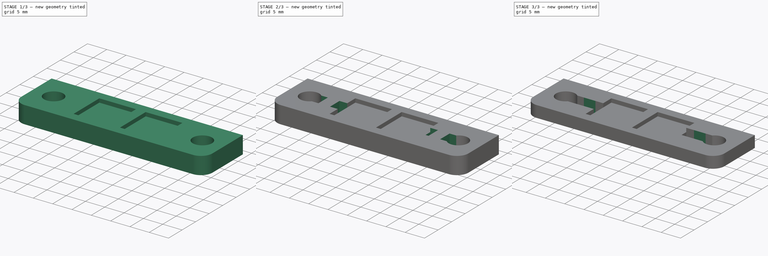
[diagram: build sequence overview — one tinted view per stage of 3, left to right]
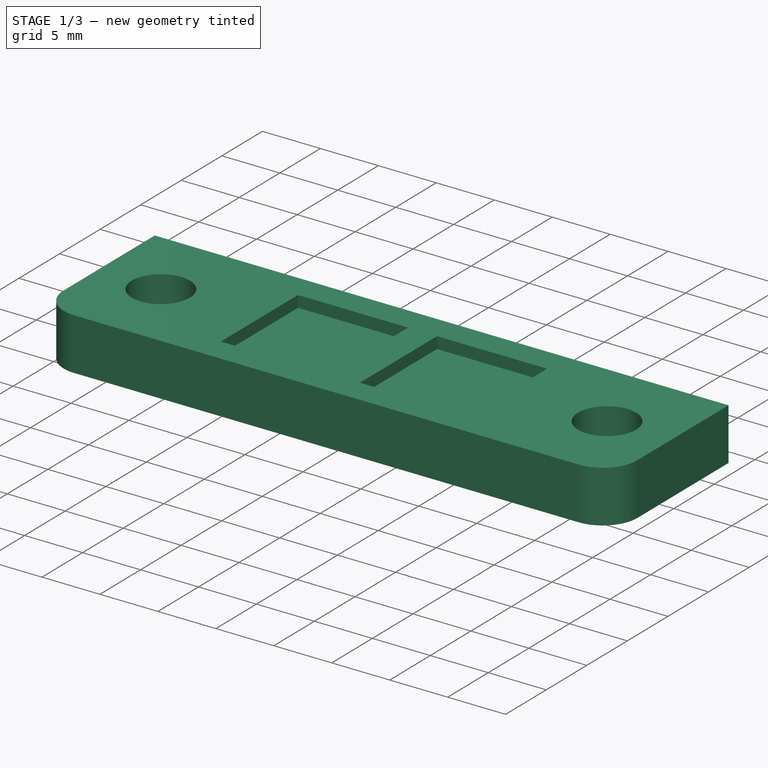
[diagram: stage 1 of 3 — iso view after this stage's code; geometry added in this stage tinted green]
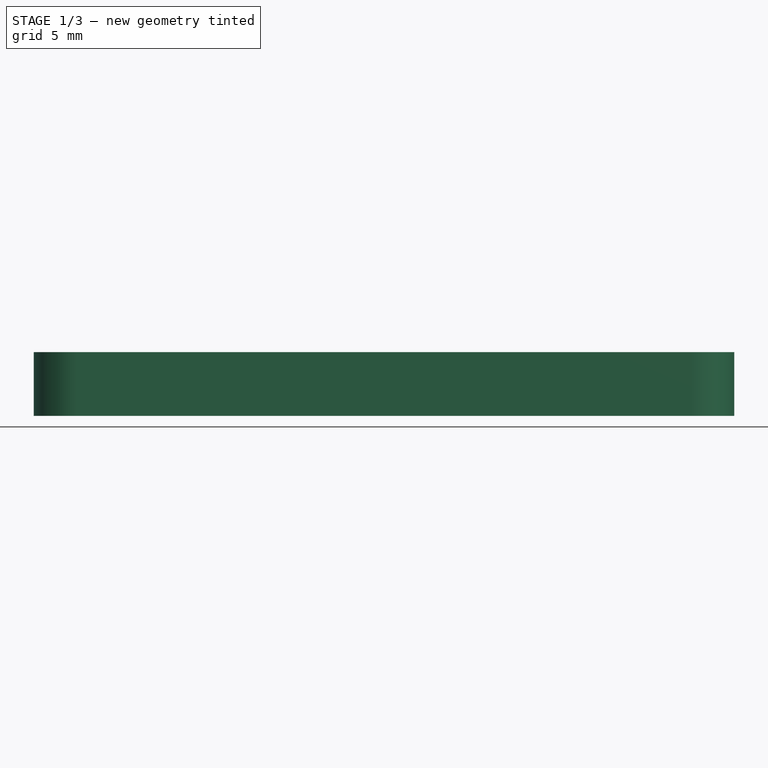
[diagram: stage 1 of 3 — front view after this stage's code; geometry added in this stage tinted green]
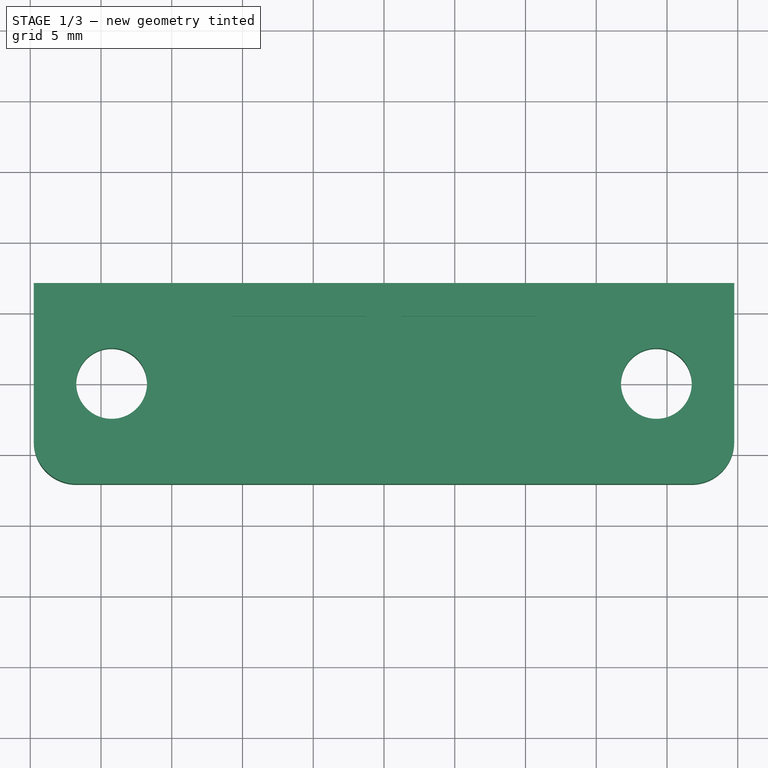
[diagram: stage 1 of 3 — top view after this stage's code; geometry added in this stage tinted green]
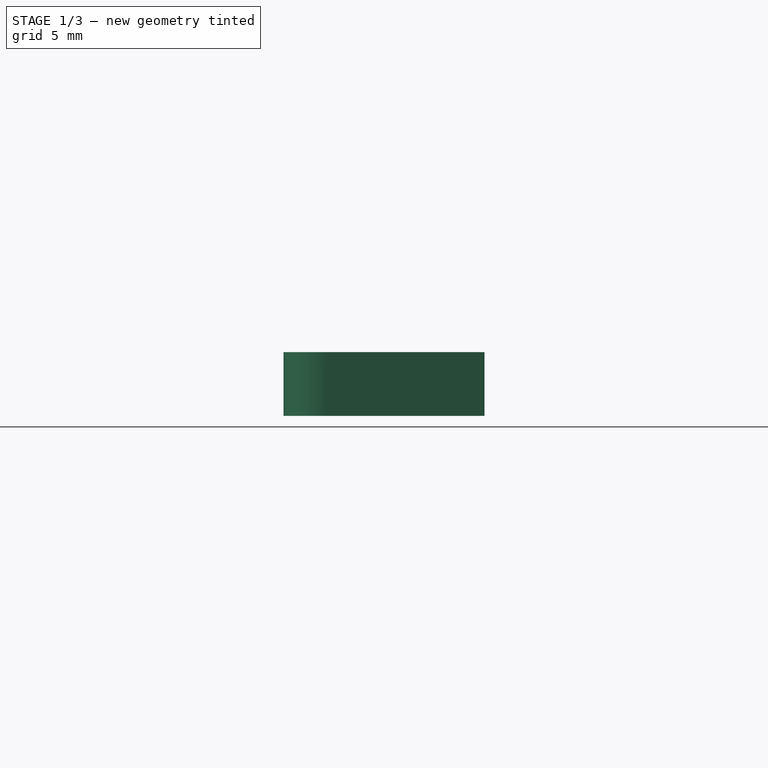
[diagram: stage 1 of 3 — right view after this stage's code; geometry added in this stage tinted green]
FCSTD DOCUMENT  (FreeCAD 0.19R24291 (Git))
Label: rumble_flat
License: All rights reserved
LicenseURL: http://en.wikipedia.org/wiki/All_rights_reserved
objects: Sketcher::SketchObject×5, PartDesign::Pocket×4, PartDesign::Plane×3, PartDesign::Pad×1, PartDesign::Body×1
note: 19 computed .brp shape members not serialized (recipe doc carries the construction recipe); baked Part::Feature solids carry a one-line shape summary decoded from their .brp

FEATURE [Sketcher::SketchObject] Sketch  label="SketchPakFromTop"
  FullyConstrained = true
  MapMode = 5
  Support = -> [XY_Plane]
  sketch-geometry (8):
    g0: LineSegment StartX=-24.75 StartY=7.1 StartZ=0 EndX=24.75 EndY=7.1 EndZ=0
    g1: LineSegment StartX=24.75 StartY=7.1 StartZ=0 EndX=24.75 EndY=-4.1 EndZ=0
    g2: LineSegment StartX=21.75 StartY=-7.1 StartZ=0 EndX=-21.75 EndY=-7.1 EndZ=0
    g3: LineSegment StartX=-24.75 StartY=-4.1 StartZ=0 EndX=-24.75 EndY=7.1 EndZ=0
    g4: ArcOfCircle CenterX=-21.75 CenterY=-4.1 CenterZ=0 NormalX=0 NormalY=0 NormalZ=1 AngleXU=0 Radius=3 StartAngle=3.14159 EndAngle=4.71239
    g5: ArcOfCircle CenterX=21.75 CenterY=-4.1 CenterZ=0 NormalX=0 NormalY=0 NormalZ=1 AngleXU=0 Radius=3 StartAngle=4.71239 EndAngle=6.28319
    g6: Circle CenterX=-19.25 CenterY=0 CenterZ=0 NormalX=0 NormalY=0 NormalZ=1 AngleXU=0 Radius=2.5
    g7: Circle CenterX=19.25 CenterY=0 CenterZ=0 NormalX=0 NormalY=0 NormalZ=1 AngleXU=0 Radius=2.5
  constraints (19):
    c: Coincident(g0,g1)
    c: Coincident(g3,g0)
    c: Vertical(g1)
    c: Tangent(g2,g4) = 1.5708
    c: Tangent(g3,g4) = 1.5708
    c: Tangent(g1,g5) = 1.5708
    c: Tangent(g2,g5) = 1.5708
    c: Symmetric(g2,g2,g-2)
    c: Symmetric(g1,g3,g-2)
    c: Symmetric(g0,g0,g-2)
    c: Radius(g5) = 3
    c: DistanceY(g2,g0) = 14.2
    c: DistanceX(g0,g0) = 49.5
    c: Symmetric(g7,g6,g-2)
    c: Radius(g7) = 2.5
    c: Radius(g6) = 2.5
    c: DistanceY(g2,g6) = 7.1
    c: DistanceX(g0,g6) = 5.5
    c: DistanceY(g-1,g6) = 0
FEATURE [PartDesign::Pad] Pad
  Direction = (1,1,1)
  Length = 4.5
  Length2 = 100
  Profile = -> Sketch
  Type = 0
FEATURE [PartDesign::Plane] DatumPlane  label="DatumPlanePakFront"
  Length = 60
  MapMode = 5
  Placement = pos=(0,-7.1,0) rot=(1,0,0;1.5708rad)
  ResizeMode = 0
  Support = -> [Pad]
  Width = 60
FEATURE [PartDesign::Plane] DatumPlane001  label="DatumPlaneTerminal"
  Length = 60
  MapMode = 5
  Placement = pos=(0,0,4.5) rot=(0,0,1;0rad)
  ResizeMode = 0
  Support = -> [Pad]
  Width = 60
FEATURE [Sketcher::SketchObject] Sketch001  label="SketchTerminalCutout"
  FullyConstrained = true
  MapMode = 5
  Placement = pos=(0,0,4.5) rot=(0,0,1;0rad)
  Support = -> [DatumPlane001]
  sketch-geometry (8):
    g0: LineSegment StartX=-10.75 StartY=4.75 StartZ=0 EndX=-1.25 EndY=4.75 EndZ=0
    g1: LineSegment StartX=-1.25 StartY=4.75 StartZ=0 EndX=-1.25 EndY=-4.75 EndZ=0
    g2: LineSegment StartX=-1.25 StartY=-4.75 StartZ=0 EndX=-10.75 EndY=-4.75 EndZ=0
    g3: LineSegment StartX=1.25 StartY=4.75 StartZ=0 EndX=10.75 EndY=4.75 EndZ=0
    g4: LineSegment StartX=10.75 StartY=-4.75 StartZ=0 EndX=1.25 EndY=-4.75 EndZ=0
    g5: LineSegment StartX=1.25 StartY=-4.75 StartZ=0 EndX=1.25 EndY=4.75 EndZ=0
    g6: LineSegment StartX=-10.75 StartY=4.75 StartZ=0 EndX=-10.75 EndY=-4.75 EndZ=0
    g7: LineSegment StartX=10.75 StartY=4.75 StartZ=0 EndX=10.75 EndY=-4.75 EndZ=0
  constraints (21):
    c: Coincident(g0,g1)
    c: Coincident(g1,g2)
    c: Horizontal(g0)
    c: Horizontal(g2)
    c: Coincident(g4,g5)
    c: Coincident(g5,g3)
    c: Horizontal(g3)
    c: Horizontal(g4)
    c: Vertical(g5)
    c: Symmetric(g0,g3,g-2)
    c: Symmetric(g2,g4,g-2)
    c: Symmetric(g0,g1,g-1)
    c: DistanceX(g1,g4) = 2.5
    c: DistanceX(g2,g1) = 9.5
    c: DistanceY(g2,g0) = 9.5
    c: Coincident(g6,g0)
    c: Coincident(g6,g2)
    c: Vertical(g6)
    c: Coincident(g7,g3)
    c: Coincident(g7,g4)
    c: Vertical(g7)
FEATURE [PartDesign::Pocket] Pocket  label="PocketTerminalCutout"
  BaseFeature = -> Pad
  Length = 1
  Length2 = 100
  Profile = -> Sketch001
  Type = 0
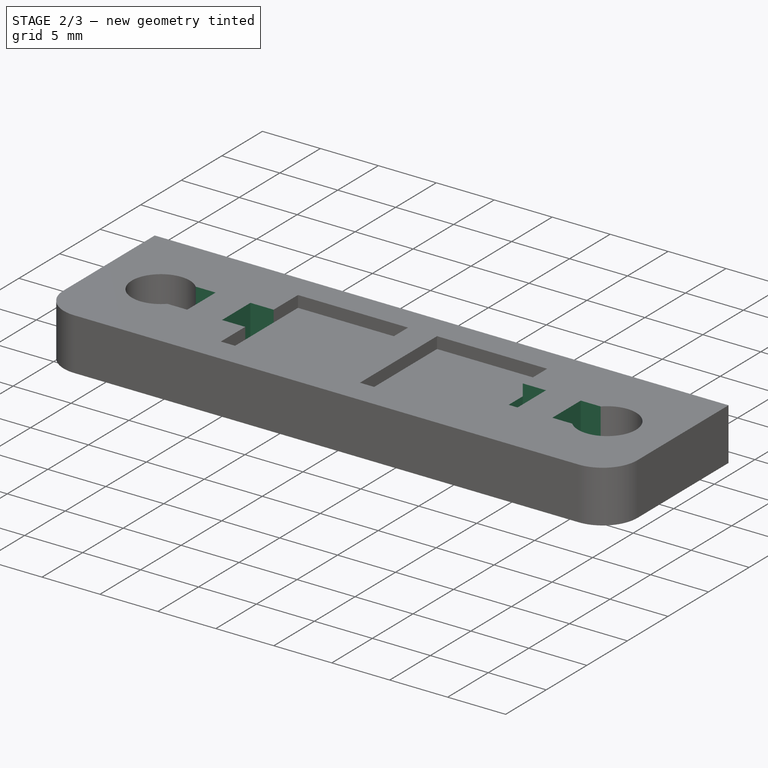
[diagram: stage 2 of 3 — iso view after this stage's code; geometry added in this stage tinted green]
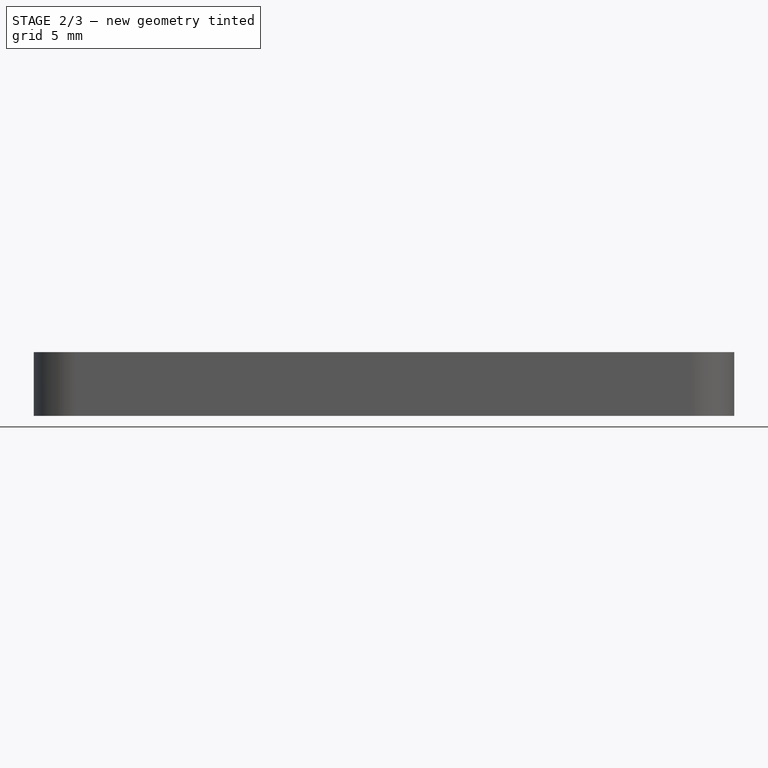
[diagram: stage 2 of 3 — front view after this stage's code; geometry added in this stage tinted green]
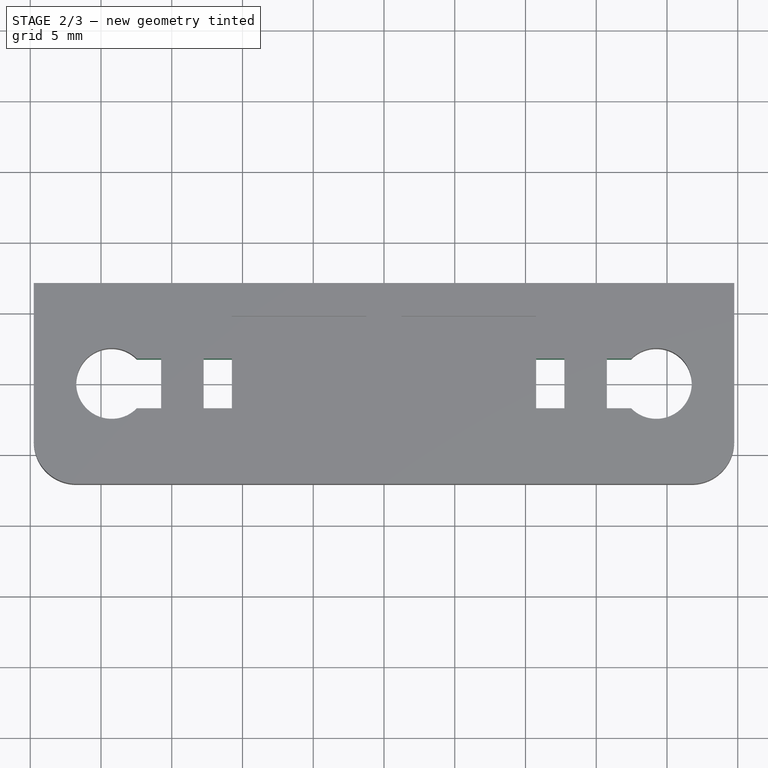
[diagram: stage 2 of 3 — top view after this stage's code; geometry added in this stage tinted green]
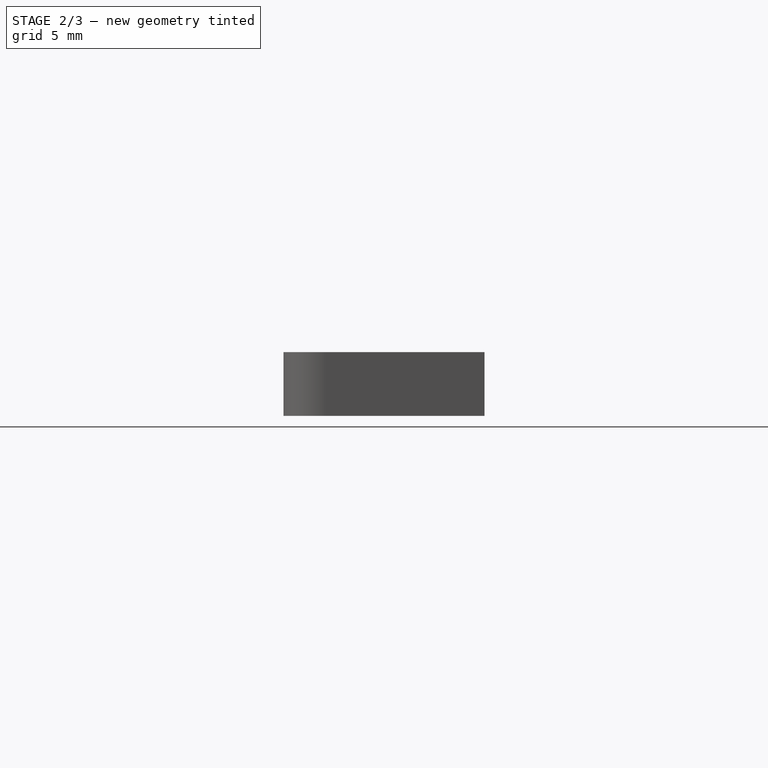
[diagram: stage 2 of 3 — right view after this stage's code; geometry added in this stage tinted green]
FEATURE [Sketcher::SketchObject] Sketch002  label="SketchTerminalTailThrough"
  FullyConstrained = true
  MapMode = 5
  Placement = pos=(0,0,4.5) rot=(0,0,1;0rad)
  Support = -> [DatumPlane001]
  sketch-geometry (16):
    g0: LineSegment StartX=-10.75 StartY=-1.75 StartZ=0 EndX=-12.75 EndY=-1.75 EndZ=0
    g1: LineSegment StartX=-12.75 StartY=-1.75 StartZ=0 EndX=-12.75 EndY=1.75 EndZ=0
    g2: LineSegment StartX=-12.75 StartY=1.75 StartZ=0 EndX=-10.75 EndY=1.75 EndZ=0
    g3: LineSegment StartX=-10.75 StartY=1.75 StartZ=0 EndX=-10.75 EndY=-1.75 EndZ=0
    g4: LineSegment StartX=10.75 StartY=-1.75 StartZ=0 EndX=12.75 EndY=-1.75 EndZ=0
    g5: LineSegment StartX=12.75 StartY=-1.75 StartZ=0 EndX=12.75 EndY=1.75 EndZ=0
    g6: LineSegment StartX=12.75 StartY=1.75 StartZ=0 EndX=10.75 EndY=1.75 EndZ=0
    g7: LineSegment StartX=10.75 StartY=1.75 StartZ=0 EndX=10.75 EndY=-1.75 EndZ=0
    g8: LineSegment StartX=-15.75 StartY=1.75 StartZ=0 EndX=-17.75 EndY=1.75 EndZ=0
    g9: LineSegment StartX=-17.75 StartY=1.75 StartZ=0 EndX=-17.75 EndY=-1.75 EndZ=0
    g10: LineSegment StartX=-17.75 StartY=-1.75 StartZ=0 EndX=-15.75 EndY=-1.75 EndZ=0
    g11: LineSegment StartX=-15.75 StartY=-1.75 StartZ=0 EndX=-15.75 EndY=1.75 EndZ=0
    g12: LineSegment StartX=15.75 StartY=1.75 StartZ=0 EndX=17.75 EndY=1.75 EndZ=0
    g13: LineSegment StartX=17.75 StartY=1.75 StartZ=0 EndX=17.75 EndY=-1.75 EndZ=0
    g14: LineSegment StartX=17.75 StartY=-1.75 StartZ=0 EndX=15.75 EndY=-1.75 EndZ=0
    g15: LineSegment StartX=15.75 StartY=-1.75 StartZ=0 EndX=15.75 EndY=1.75 EndZ=0
  constraints (42):
    c: Coincident(g0,g1)
    c: Coincident(g1,g2)
    c: Coincident(g2,g3)
    c: Coincident(g3,g0)
    c: Horizontal(g0)
    c: Horizontal(g2)
    c: Vertical(g1)
    c: Coincident(g4,g5)
    c: Coincident(g5,g6)
    c: Coincident(g6,g7)
    c: Coincident(g7,g4)
    c: Horizontal(g4)
    c: Vertical(g5)
    c: Symmetric(g0,g2,g-1)
    c: Symmetric(g4,g6,g-1)
    c: Symmetric(g0,g4,g-2)
    c: Symmetric(g5,g1,g-2)
    c: DistanceX(g2,g-1) = 10.75
    c: DistanceX(g1,g2) = 2
    c: DistanceY(g0,g2) = 3.5
    c: Coincident(g8,g9)
    c: Coincident(g9,g10)
    c: Coincident(g10,g11)
    c: Coincident(g11,g8)
    c: Horizontal(g8)
    c: Horizontal(g10)
    c: Vertical(g9)
    c: Vertical(g11)
    c: Coincident(g12,g13)
    c: Coincident(g13,g14)
    c: Coincident(g14,g15)
    c: Coincident(g15,g12)
    c: Horizontal(g12)
    c: Horizontal(g14)
    c: Vertical(g13)
    c: Vertical(g15)
    c: Symmetric(g14,g10,g-2)
    c: Symmetric(g12,g8,g-2)
    c: DistanceY(g10,g0) = 0
    c: DistanceY(g8,g1) = 0
    c: DistanceX(g9,g10) = 2
    c: DistanceX(g8,g1) = 3
FEATURE [PartDesign::Pocket] Pocket001  label="PocketTerminalTailThrough"
  BaseFeature = -> Pocket
  Length = 5
  Length2 = 100
  Profile = -> Sketch002
  Type = 0
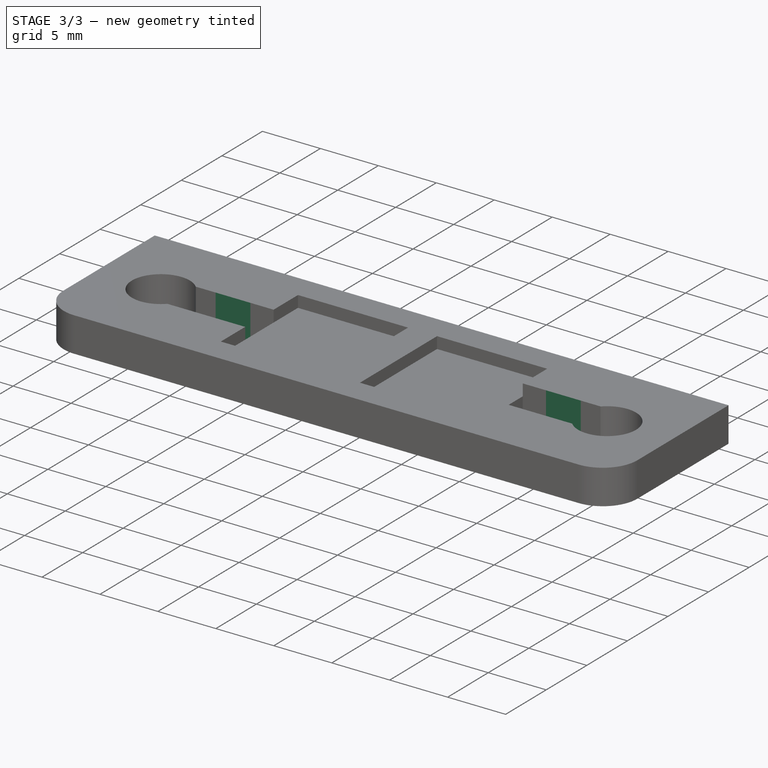
[diagram: stage 3 of 3 — iso view after this stage's code; geometry added in this stage tinted green]
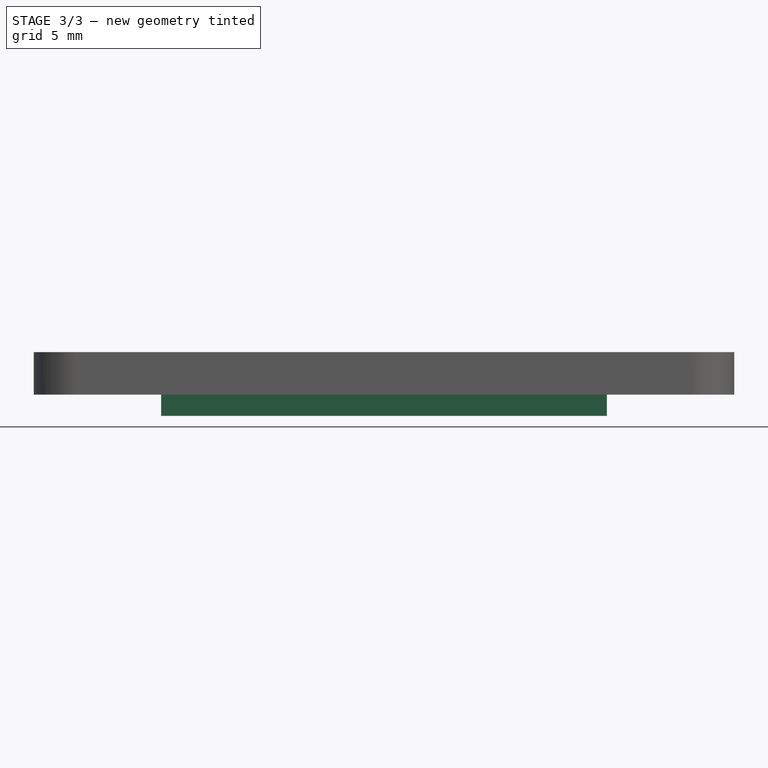
[diagram: stage 3 of 3 — front view after this stage's code; geometry added in this stage tinted green]
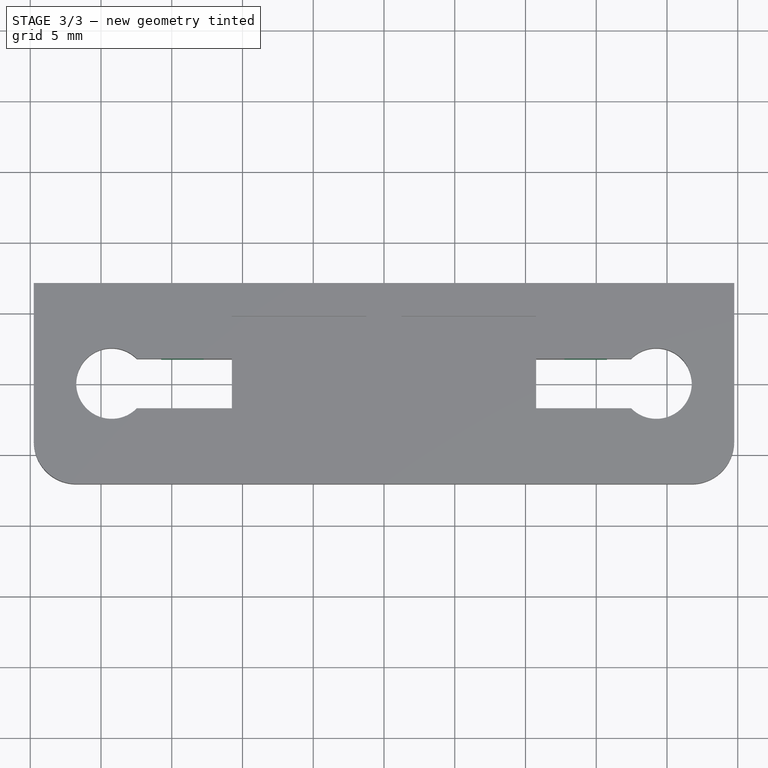
[diagram: stage 3 of 3 — top view after this stage's code; geometry added in this stage tinted green]
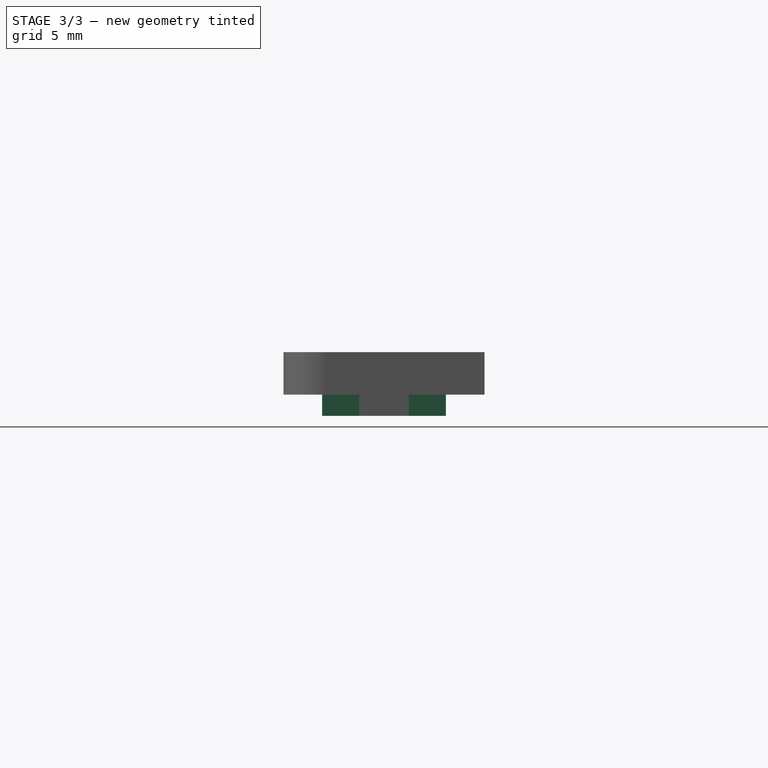
[diagram: stage 3 of 3 — right view after this stage's code; geometry added in this stage tinted green]
FEATURE [Sketcher::SketchObject] Sketch003  label="SketchTerminalTailCutout"
  FullyConstrained = true
  MapMode = 5
  Placement = pos=(0,0,4.5) rot=(0,0,1;0rad)
  Support = -> [DatumPlane001]
  sketch-geometry (8):
    g0: LineSegment StartX=-17.75 StartY=1.75 StartZ=0 EndX=-10.75 EndY=1.75 EndZ=0
    g1: LineSegment StartX=-10.75 StartY=1.75 StartZ=0 EndX=-10.75 EndY=-1.75 EndZ=0
    g2: LineSegment StartX=-10.75 StartY=-1.75 StartZ=0 EndX=-17.75 EndY=-1.75 EndZ=0
    g3: LineSegment StartX=-17.75 StartY=-1.75 StartZ=0 EndX=-17.75 EndY=1.75 EndZ=0
    g4: LineSegment StartX=10.75 StartY=1.75 StartZ=0 EndX=17.75 EndY=1.75 EndZ=0
    g5: LineSegment StartX=17.75 StartY=1.75 StartZ=0 EndX=17.75 EndY=-1.75 EndZ=0
    g6: LineSegment StartX=17.75 StartY=-1.75 StartZ=0 EndX=10.75 EndY=-1.75 EndZ=0
    g7: LineSegment StartX=10.75 StartY=-1.75 StartZ=0 EndX=10.75 EndY=1.75 EndZ=0
  constraints (21):
    c: Coincident(g0,g1)
    c: Coincident(g1,g2)
    c: Coincident(g2,g3)
    c: Coincident(g3,g0)
    c: Horizontal(g0)
    c: Horizontal(g2)
    c: Vertical(g3)
    c: Coincident(g4,g5)
    c: Coincident(g5,g6)
    c: Coincident(g6,g7)
    c: Coincident(g7,g4)
    c: Horizontal(g4)
    c: Horizontal(g6)
    c: Vertical(g5)
    c: Vertical(g7)
    c: Symmetric(g0,g4,g-2)
    c: Symmetric(g2,g5,g-2)
    c: Symmetric(g1,g0,g-1)
    c: DistanceX(g1,g-1) = 10.75
    c: DistanceX(g2,g1) = 7
    c: DistanceY(g1,g0) = 3.5
FEATURE [PartDesign::Pocket] Pocket002  label="PocketTerminalTailCutout"
  BaseFeature = -> Pocket001
  Length = 5
  Length2 = 100
  Profile = -> Sketch003
  Type = 0
FEATURE [PartDesign::Plane] DatumPlane002  label="DatumPlaneBottom"
  Length = 60
  MapMode = 5
  Placement = pos=(0,0,0) rot=(1,0,0;3.14159rad)
  ResizeMode = 0
  Support = -> [Pocket002]
  Width = 60
FEATURE [Sketcher::SketchObject] Sketch004  label="SketchPortCutout"
  FullyConstrained = true
  MapMode = 5
  Placement = pos=(0,0,0) rot=(1,0,0;3.14159rad)
  Support = -> [DatumPlane002]
  sketch-geometry (8):
    g0: LineSegment StartX=-26 StartY=8 StartZ=0 EndX=26 EndY=8 EndZ=0
    g1: LineSegment StartX=26 StartY=8 StartZ=0 EndX=26 EndY=-8 EndZ=0
    g2: LineSegment StartX=26 StartY=-8 StartZ=0 EndX=-26 EndY=-8 EndZ=0
    g3: LineSegment StartX=-26 StartY=-8 StartZ=0 EndX=-26 EndY=8 EndZ=0
    g4: LineSegment StartX=-15.75 StartY=4.375 StartZ=0 EndX=15.75 EndY=4.375 EndZ=0
    g5: LineSegment StartX=15.75 StartY=4.375 StartZ=0 EndX=15.75 EndY=-4.375 EndZ=0
    g6: LineSegment StartX=15.75 StartY=-4.375 StartZ=0 EndX=-15.75 EndY=-4.375 EndZ=0
    g7: LineSegment StartX=-15.75 StartY=-4.375 StartZ=0 EndX=-15.75 EndY=4.375 EndZ=0
  constraints (20):
    c: Coincident(g0,g1)
    c: Coincident(g1,g2)
    c: Coincident(g2,g3)
    c: Coincident(g3,g0)
    c: Horizontal(g0)
    c: Vertical(g1)
    c: Coincident(g4,g5)
    c: Coincident(g5,g6)
    c: Coincident(g6,g7)
    c: Coincident(g7,g4)
    c: Horizontal(g4)
    c: Vertical(g5)
    c: Symmetric(g5,g6,g-2)
    c: Symmetric(g2,g1,g-2)
    c: Symmetric(g4,g6,g-1)
    c: Symmetric(g0,g2,g-1)
    c: DistanceX(g4,g4) = 31.5
    c: DistanceY(g5,g4) = 8.75
    c: DistanceX(g0,g0) = 52
    c: DistanceY(g2,g0) = 16
FEATURE [PartDesign::Pocket] Pocket003  label="PocketPortCutout"
  BaseFeature = -> Pocket002
  Length = 1.5
  Length2 = 100
  Profile = -> Sketch004
  Type = 0
FEATURE [PartDesign::Body] Body
  Group = -> [Sketch,Pad,DatumPlane,DatumPlane001,Sketch001,Pocket,Sketch002,Pocket001,Sketch003,Pocket002,DatumPlane002,Sketch004,Pocket003]
  Origin = -> Origin
  Tip = -> Pocket003
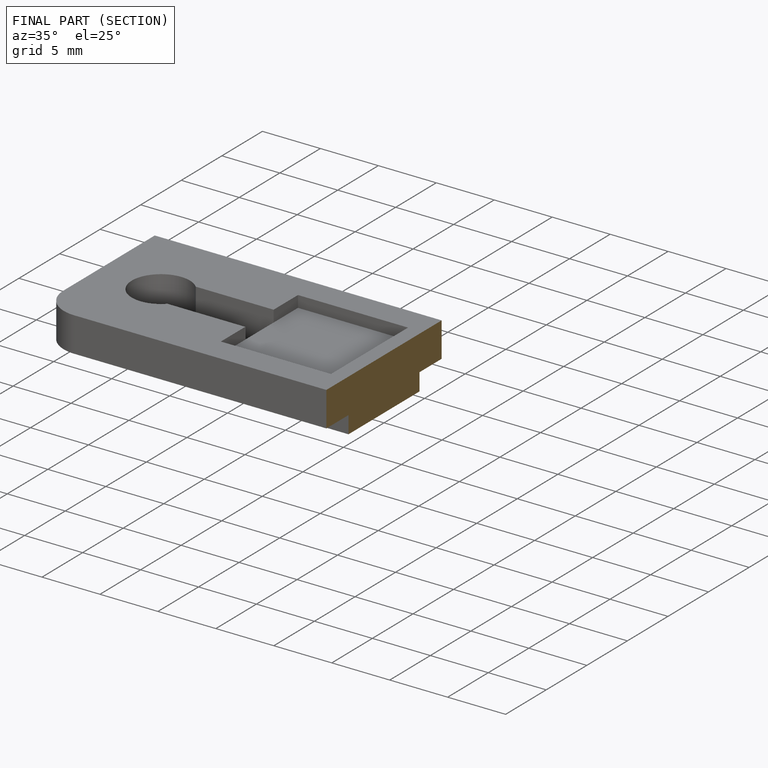
[diagram: finished part — half-section view (interior)]
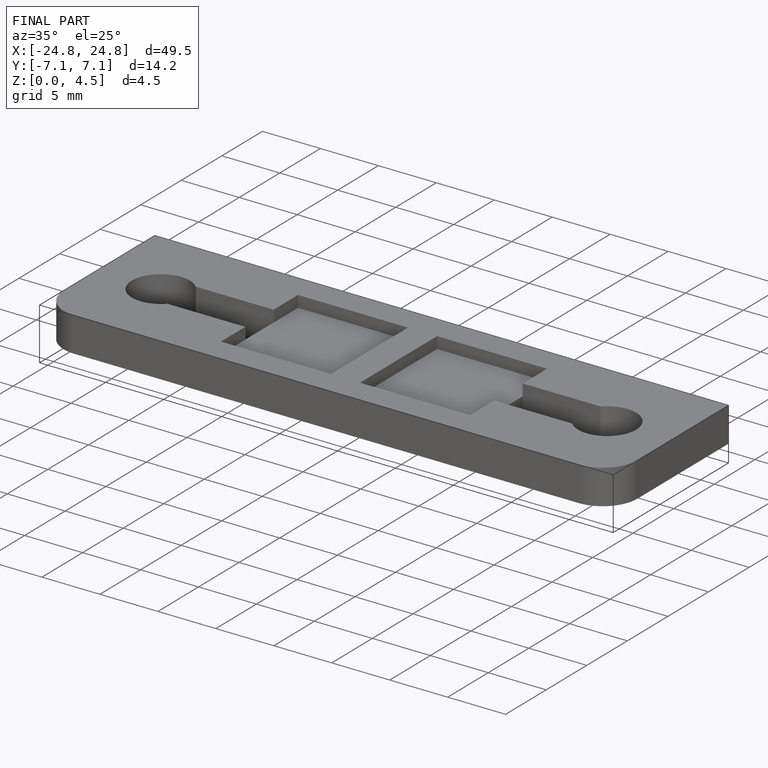
[diagram: finished part — iso view with bounding-box wireframe]
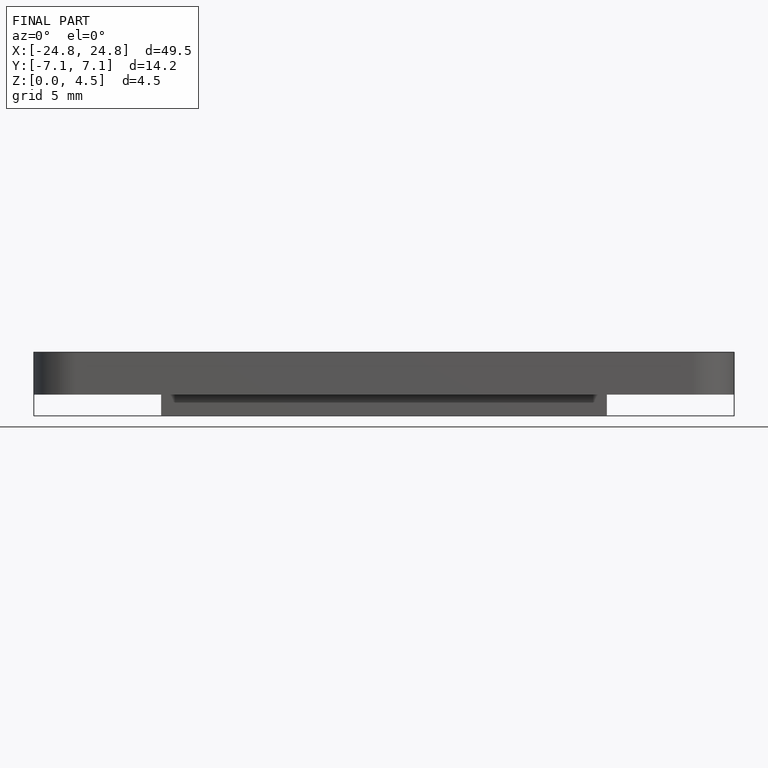
[diagram: finished part — front view with bounding-box wireframe]
